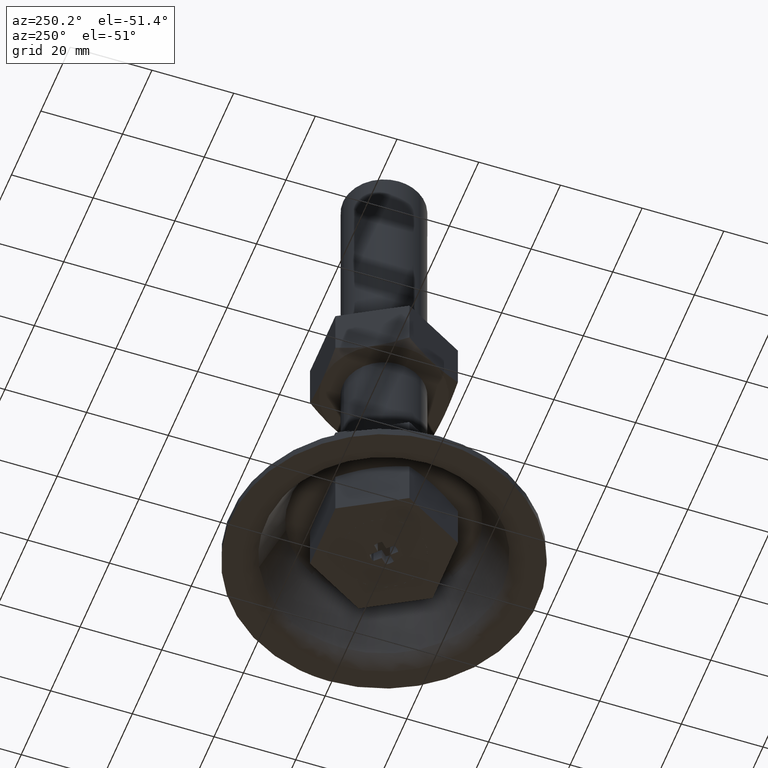
[diagram: clean part render]
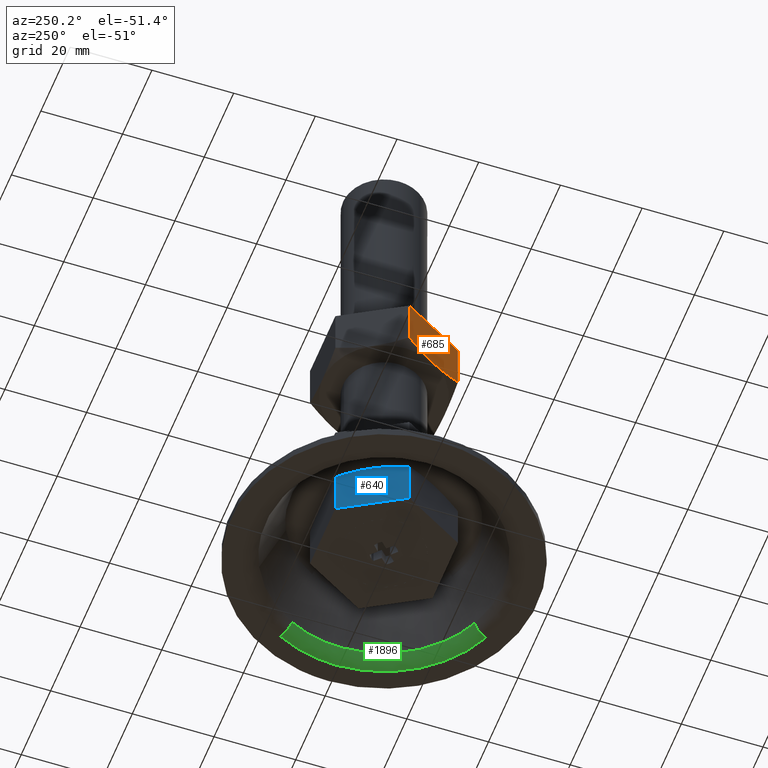
[diagram: same view with three faces highlighted in distinct colors, each labeled with its STEP entity id]
A machine part, auxiliary view with three faces highlighted in distinct colors.
Their STEP definitions:

[orange] entity #685 — the highlighted face is a freeform B-spline surface patch.
#243=CARTESIAN_POINT('',(-8.639746000000001,-15.0,62.345671394023498));
#244=VERTEX_POINT('',#243);
#267=CARTESIAN_POINT('',(-17.300000000000001,-3.847792E-016,62.339745951231102));
#268=VERTEX_POINT('',#267);
#269=CARTESIAN_POINT('',(-17.300000000000001,-3.847792E-016,62.339745951231102));
#270=CARTESIAN_POINT('',(-16.592941722767922,-1.224660865429836,61.931525664537929));
#271=CARTESIAN_POINT('',(-15.880722203566391,-2.458261264219856,61.595166574800167));
#272=CARTESIAN_POINT('',(-14.801235094892700,-4.327987790728781,61.245981053792342));
#273=CARTESIAN_POINT('',(-14.439541958482780,-4.954458682477314,61.155540189446192));
#274=CARTESIAN_POINT('',(-13.711936844397609,-6.214707713426930,61.033398389028733));
#275=CARTESIAN_POINT('',(-13.346021212827781,-6.848492181359093,61.001748326998843));
#276=CARTESIAN_POINT('',(-12.885799685170870,-7.645619253481179,61.001546577078052));
#277=CARTESIAN_POINT('',(-12.793614645803361,-7.805288426061178,61.003465697697358));
#278=CARTESIAN_POINT('',(-12.608961067811631,-8.125117806339848,61.011251166375267));
#279=CARTESIAN_POINT('',(-12.516661840701410,-8.284984757892698,61.017113104138417));
#280=CARTESIAN_POINT('',(-12.240427566274530,-8.763436558082766,61.040486526452412));
#281=CARTESIAN_POINT('',(-12.056912984918901,-9.081293138309434,61.063800979005457));
#282=CARTESIAN_POINT('',(-11.508210259183780,-10.031674141687260,61.155931109065449));
#283=CARTESIAN_POINT('',(-11.144867414517440,-10.661002411966070,61.246985155436597));
#284=CARTESIAN_POINT('',(-10.061320491401849,-12.537760743388411,61.598259512653499));
#285=CARTESIAN_POINT('',(-9.347572270797715,-13.774008930688909,61.936281682498588));
#286=CARTESIAN_POINT('',(-8.639746000000001,-15.0,62.345671394023498));
#287=B_SPLINE_CURVE_WITH_KNOTS('',3,(#269,#270,#271,#272,#273,#274,#275,#276,#277,#278,#279,#280,#281,#282,#283,#284,#285,#286),.UNSPECIFIED.,.F.,.U.,(4,2,2,2,2,2,2,2,4),(0.0,0.250000000000000,0.375000000000000,0.500000000000000,0.531250000000000,0.562500000000000,0.625000000000000,0.750000000000000,1.0),.UNSPECIFIED.);
#288=EDGE_CURVE('',#268,#244,#287,.T.);
#519=CARTESIAN_POINT('',(-8.639746000000001,-15.0,74.0));
#520=VERTEX_POINT('',#519);
#521=CARTESIAN_POINT('',(-17.300000000000001,0.0,74.0));
#522=VERTEX_POINT('',#521);
#523=CARTESIAN_POINT('',(-8.639746000000001,-15.0,74.0));
#524=CARTESIAN_POINT('',(-17.300000000000001,0.0,74.0));
#525=QUASI_UNIFORM_CURVE('',1,(#523,#524),.UNSPECIFIED.,.F.,.U.);
#526=EDGE_CURVE('',#520,#522,#525,.T.);
#593=CARTESIAN_POINT('',(-8.639746000000001,-15.0,74.0));
#594=CARTESIAN_POINT('',(-8.639746000000001,-15.0,62.345671394023498));
#595=QUASI_UNIFORM_CURVE('',1,(#593,#594),.UNSPECIFIED.,.F.,.U.);
#596=EDGE_CURVE('',#520,#244,#595,.T.);
#665=CARTESIAN_POINT('',(-17.300000000000001,0.0,74.0));
#666=CARTESIAN_POINT('',(-17.300000000000001,-3.847792E-016,62.339745951231102));
#667=QUASI_UNIFORM_CURVE('',1,(#665,#666),.UNSPECIFIED.,.F.,.U.);
#668=EDGE_CURVE('',#522,#268,#667,.T.);
#674=CARTESIAN_POINT('',(-17.732579507922260,0.749249689308524,60.352316161138162));
#675=CARTESIAN_POINT('',(-8.207166104934260,-15.749250359860810,60.352316161138162));
#676=CARTESIAN_POINT('',(-17.732579507922260,0.749249689308524,74.649271059209553));
#677=CARTESIAN_POINT('',(-8.207166104934260,-15.749250359860810,74.649271059209553));
#678=B_SPLINE_SURFACE_WITH_KNOTS('',1,1,((#674,#676),(#675,#677)),.UNSPECIFIED.,.F.,.F.,.U.,(2,2),(2,2),(0.0,19.050826868413449),(0.0,14.296954898071400),.UNSPECIFIED.);
#679=ORIENTED_EDGE('',*,*,#668,.T.);
#680=ORIENTED_EDGE('',*,*,#288,.T.);
#681=ORIENTED_EDGE('',*,*,#596,.F.);
#682=ORIENTED_EDGE('',*,*,#526,.T.);
#683=EDGE_LOOP('',(#679,#680,#681,#682));
#684=FACE_OUTER_BOUND('',#683,.T.);
#685=ADVANCED_FACE('',(#684),#678,.T.);

[blue] entity #640 — the highlighted face is a freeform B-spline surface patch.
#116=CARTESIAN_POINT('',(8.639746000000001,15.0,62.345671394023597));
#117=VERTEX_POINT('',#116);
#140=CARTESIAN_POINT('',(17.300000000000001,-5.809094E-016,62.339745951231102));
#141=VERTEX_POINT('',#140);
#142=CARTESIAN_POINT('',(17.300000000000001,-5.809094E-016,62.339745951231102));
#143=CARTESIAN_POINT('',(16.592941722767879,1.224660865429817,61.931525664537929));
#144=CARTESIAN_POINT('',(15.880722203566361,2.458261264219840,61.595166574800132));
#145=CARTESIAN_POINT('',(14.801235094892681,4.327987790728767,61.245981053792327));
#146=CARTESIAN_POINT('',(14.439541958482760,4.954458682477307,61.155540189446192));
#147=CARTESIAN_POINT('',(13.711936844397581,6.214707713426920,61.033398389028697));
#148=CARTESIAN_POINT('',(13.346021212827759,6.848492181359091,61.001748326998872));
#149=CARTESIAN_POINT('',(12.885799685170850,7.645619253481175,61.001546577078031));
#150=CARTESIAN_POINT('',(12.793614645803350,7.805288426061178,61.003465697697358));
#151=CARTESIAN_POINT('',(12.608961067811620,8.125117806339844,61.011251166375260));
#152=CARTESIAN_POINT('',(12.516661840701390,8.284984757892703,61.017113104138417));
#153=CARTESIAN_POINT('',(12.240427566274510,8.763436558082770,61.040486526452383));
#154=CARTESIAN_POINT('',(12.056912984918890,9.081293138309439,61.063800979005457));
#155=CARTESIAN_POINT('',(11.508210259183761,10.031674141687260,61.155931109065421));
#156=CARTESIAN_POINT('',(11.144867414517419,10.661002411966070,61.246985155436583));
#157=CARTESIAN_POINT('',(10.061320491401840,12.537760743388411,61.598259512653492));
#158=CARTESIAN_POINT('',(9.347572270797706,13.774008930688920,61.936281682498603));
#159=CARTESIAN_POINT('',(8.639746000000001,15.0,62.345671394023597));
#160=B_SPLINE_CURVE_WITH_KNOTS('',3,(#142,#143,#144,#145,#146,#147,#148,#149,#150,#151,#152,#153,#154,#155,#156,#157,#158,#159),.UNSPECIFIED.,.F.,.U.,(4,2,2,2,2,2,2,2,4),(0.0,0.249999999999999,0.374999999999999,0.499999999999998,0.531249999999998,0.562499999999998,0.624999999999998,0.749999999999999,1.0),.UNSPECIFIED.);
#161=EDGE_CURVE('',#141,#117,#160,.T.);
#535=CARTESIAN_POINT('',(17.300000000000001,0.0,74.0));
#536=VERTEX_POINT('',#535);
#542=CARTESIAN_POINT('',(8.639746000000001,15.0,74.0));
#543=VERTEX_POINT('',#542);
#544=CARTESIAN_POINT('',(8.639746000000001,15.0,74.0));
#545=CARTESIAN_POINT('',(17.300000000000001,0.0,74.0));
#546=QUASI_UNIFORM_CURVE('',1,(#544,#545),.UNSPECIFIED.,.F.,.U.);
#547=EDGE_CURVE('',#543,#536,#546,.T.);
#616=CARTESIAN_POINT('',(17.300000000000001,0.0,74.0));
#617=CARTESIAN_POINT('',(17.300000000000001,-5.809094E-016,62.339745951231102));
#618=QUASI_UNIFORM_CURVE('',1,(#616,#617),.UNSPECIFIED.,.F.,.U.);
#619=EDGE_CURVE('',#536,#141,#618,.T.);
#625=CARTESIAN_POINT('',(17.732579507922232,-0.749249689308545,60.352316161138141));
#626=CARTESIAN_POINT('',(8.207166104934263,15.749250359860810,60.352316161138148));
#627=CARTESIAN_POINT('',(17.732579507922232,-0.749249689308545,74.649271059209568));
#628=CARTESIAN_POINT('',(8.207166104934263,15.749250359860810,74.649271059209568));
#629=B_SPLINE_SURFACE_WITH_KNOTS('',1,1,((#625,#627),(#626,#628)),.UNSPECIFIED.,.F.,.F.,.U.,(2,2),(2,2),(0.0,19.050826868413449),(0.0,14.296954898071430),.UNSPECIFIED.);
#630=ORIENTED_EDGE('',*,*,#619,.T.);
#631=ORIENTED_EDGE('',*,*,#161,.T.);
#632=CARTESIAN_POINT('',(8.639746000000001,15.0,74.0));
#633=CARTESIAN_POINT('',(8.639746000000001,15.0,62.345671394023597));
#634=QUASI_UNIFORM_CURVE('',1,(#632,#633),.UNSPECIFIED.,.F.,.U.);
#635=EDGE_CURVE('',#543,#117,#634,.T.);
#636=ORIENTED_EDGE('',*,*,#635,.F.);
#637=ORIENTED_EDGE('',*,*,#547,.T.);
#638=EDGE_LOOP('',(#630,#631,#636,#637));
#639=FACE_OUTER_BOUND('',#638,.T.);
#640=ADVANCED_FACE('',(#639),#629,.T.);

[green] entity #1896 — the highlighted face is a freeform B-spline surface patch.
#963=CARTESIAN_POINT('',(25.704757550471040,13.301322007613750,2.237050468226475));
#964=VERTEX_POINT('',#963);
#978=CARTESIAN_POINT('',(28.942351802662198,0.0,2.237050468566510));
#979=VERTEX_POINT('',#978);
#980=CARTESIAN_POINT('',(25.704757550471044,13.301322007613750,2.237050468226474));
#981=CARTESIAN_POINT('',(28.942351802662202,7.044682610681849,2.237050468566510));
#982=CARTESIAN_POINT('',(28.942351802662198,0.0,2.237050468566510));
#990=(BOUNDED_CURVE()B_SPLINE_CURVE(2,(#980,#981,#982),.UNSPECIFIED.,.F.,.U.)B_SPLINE_CURVE_WITH_KNOTS((3,3),(0.421825371003049,0.500000000000000),.UNSPECIFIED.)CURVE()GEOMETRIC_REPRESENTATION_ITEM()RATIONAL_B_SPLINE_CURVE((0.874103860136126,0.908412725134143,1.0))REPRESENTATION_ITEM(''));
#991=EDGE_CURVE('',#964,#979,#990,.T.);
#993=CARTESIAN_POINT('',(11.809436057714841,-26.423416658250780,2.237050467591287));
#994=VERTEX_POINT('',#993);
#995=CARTESIAN_POINT('',(28.942351802662198,0.0,2.237050468566510));
#996=CARTESIAN_POINT('',(28.942351802662191,-18.766190660418051,2.237050468566510));
#997=CARTESIAN_POINT('',(11.809436057714844,-26.423416658250783,2.237050467591287));
#1005=(BOUNDED_CURVE()B_SPLINE_CURVE(2,(#995,#996,#997),.UNSPECIFIED.,.F.,.U.)B_SPLINE_CURVE_WITH_KNOTS((3,3),(0.500000000000000,0.680709483577362),.UNSPECIFIED.)CURVE()GEOMETRIC_REPRESENTATION_ITEM()RATIONAL_B_SPLINE_CURVE((1.0,0.788285670739640,0.882641638331817))REPRESENTATION_ITEM(''));
#1006=EDGE_CURVE('',#979,#994,#1005,.T.);
#1771=CARTESIAN_POINT('',(13.274496828831539,-29.701465753393460,6.272560E-016));
#1772=VERTEX_POINT('',#1771);
#1773=CARTESIAN_POINT('',(13.274496828831541,-29.701465753393460,6.272560E-016));
#1774=CARTESIAN_POINT('',(12.257614232263602,-27.426207865816647,2.246955E-009));
#1775=CARTESIAN_POINT('',(11.809436057714841,-26.423416658250787,2.237050467591287));
#1783=(BOUNDED_CURVE()B_SPLINE_CURVE(2,(#1773,#1774,#1775),.UNSPECIFIED.,.F.,.U.)B_SPLINE_CURVE_WITH_KNOTS((3,3),(-1.645059919364453,-0.344443061153596),.UNSPECIFIED.)CURVE()GEOMETRIC_REPRESENTATION_ITEM()RATIONAL_B_SPLINE_CURVE((0.884983933262238,0.752043508425035,0.887147264431271))REPRESENTATION_ITEM(''));
#1784=EDGE_CURVE('',#1772,#994,#1783,.T.);
#1803=CARTESIAN_POINT('',(28.893650885626290,14.951463893438650,6.131464E-016));
#1804=VERTEX_POINT('',#1803);
#1820=CARTESIAN_POINT('',(28.893650885626286,14.951463893438643,6.131464E-016));
#1821=CARTESIAN_POINT('',(26.680275031932048,13.806118527055904,3.588732E-010));
#1822=CARTESIAN_POINT('',(25.704757550471037,13.301322007613747,2.237050468226475));
#1830=(BOUNDED_CURVE()B_SPLINE_CURVE(2,(#1820,#1821,#1822),.UNSPECIFIED.,.F.,.U.)B_SPLINE_CURVE_WITH_KNOTS((3,3),(-1.645059920295007,-0.344443060717956),.UNSPECIFIED.)CURVE()GEOMETRIC_REPRESENTATION_ITEM()RATIONAL_B_SPLINE_CURVE((0.905349034995599,0.769349407105425,0.907562148275897))REPRESENTATION_ITEM(''));
#1831=EDGE_CURVE('',#1804,#964,#1830,.T.);
#1839=CARTESIAN_POINT('',(29.080025218520500,15.047906157494930,0.005508355514710));
#1840=CARTESIAN_POINT('',(44.127931376015439,-14.032119061025561,0.005508355514710));
#1841=CARTESIAN_POINT('',(15.047906157494939,-29.080025218520500,0.005508355514710));
#1842=CARTESIAN_POINT('',(14.215649132476672,-29.510689412147631,0.005508355514710));
#1843=CARTESIAN_POINT('',(13.360123708710887,-29.893050043822956,0.005508355514711));
#1844=CARTESIAN_POINT('',(26.602574505198223,13.765911194844442,-0.141036379579506));
#1845=CARTESIAN_POINT('',(40.368485700042669,-12.836663310353778,-0.141036379579506));
#1846=CARTESIAN_POINT('',(13.765911194844442,-26.602574505198223,-0.141036379579506));
#1847=CARTESIAN_POINT('',(13.004557676436129,-26.996548589181828,-0.141036379579506));
#1848=CARTESIAN_POINT('',(12.221918092880147,-27.346334296572476,-0.141036379579505));
#1849=CARTESIAN_POINT('',(25.627193417401880,13.261185254386630,2.427354544556523));
#1850=CARTESIAN_POINT('',(38.888378671788516,-12.366008163015247,2.427354544556525));
#1851=CARTESIAN_POINT('',(13.261185254386630,-25.627193417401880,2.427354544556523));
#1852=CARTESIAN_POINT('',(12.527746696721595,-26.006722475753687,2.427354544556523));
#1853=CARTESIAN_POINT('',(11.773802525642019,-26.343683320509175,2.427354544556525));
#1861=(BOUNDED_SURFACE()B_SPLINE_SURFACE(2,2,((#1839,#1844,#1849),(#1840,#1845,#1850),(#1841,#1846,#1851),(#1842,#1847,#1852),(#1843,#1848,#1853)),.UNSPECIFIED.,.F.,.F.,.U.)B_SPLINE_SURFACE_WITH_KNOTS((3,2,3),(3,3),(0.0,54.249956099669632,56.419952274184823),(0.0,5.033719472252819),.UNSPECIFIED.)GEOMETRIC_REPRESENTATION_ITEM()RATIONAL_B_SPLINE_SURFACE(((0.919619680268002,0.754968262264206,0.922053791315759),(0.650269312030109,0.533843177827644,0.651990488458139),(0.919619680268002,0.754968262264206,0.922053791315759),(0.908845675813387,0.746123267321996,0.911251269503552),(0.898933590893150,0.737985871300343,0.901312948612154)))REPRESENTATION_ITEM('')SURFACE());
#1862=ORIENTED_EDGE('',*,*,#1006,.F.);
#1863=ORIENTED_EDGE('',*,*,#991,.F.);
#1864=ORIENTED_EDGE('',*,*,#1831,.F.);
#1865=CARTESIAN_POINT('',(32.532896183340213,0.0,0.0));
#1866=VERTEX_POINT('',#1865);
#1867=CARTESIAN_POINT('',(28.893650885626290,14.951463893438653,6.131464E-016));
#1868=CARTESIAN_POINT('',(32.532896183340206,7.918635278180695,0.0));
#1869=CARTESIAN_POINT('',(32.532896183340213,0.0,0.0));
#1877=(BOUNDED_CURVE()B_SPLINE_CURVE(2,(#1867,#1868,#1869),.UNSPECIFIED.,.F.,.U.)B_SPLINE_CURVE_WITH_KNOTS((3,3),(0.421825371002993,0.500000000000000),.UNSPECIFIED.)CURVE()GEOMETRIC_REPRESENTATION_ITEM()RATIONAL_B_SPLINE_CURVE((0.874103860136077,0.908412725134076,1.0))REPRESENTATION_ITEM(''));
#1878=EDGE_CURVE('',#1804,#1866,#1877,.T.);
#1879=ORIENTED_EDGE('',*,*,#1878,.T.);
#1880=CARTESIAN_POINT('',(32.532896183340213,0.0,0.0));
#1881=CARTESIAN_POINT('',(32.532896183340206,-21.094295884190277,0.0));
#1882=CARTESIAN_POINT('',(13.274496828831538,-29.701465753393457,6.272560E-016));
#1890=(BOUNDED_CURVE()B_SPLINE_CURVE(2,(#1880,#1881,#1882),.UNSPECIFIED.,.F.,.U.)B_SPLINE_CURVE_WITH_KNOTS((3,3),(0.500000000000000,0.680709483576786),.UNSPECIFIED.)CURVE()GEOMETRIC_REPRESENTATION_ITEM()RATIONAL_B_SPLINE_CURVE((1.0,0.788285670740313,0.882641638331216))REPRESENTATION_ITEM(''));
#1891=EDGE_CURVE('',#1866,#1772,#1890,.T.);
#1892=ORIENTED_EDGE('',*,*,#1891,.T.);
#1893=ORIENTED_EDGE('',*,*,#1784,.T.);
#1894=EDGE_LOOP('',(#1862,#1863,#1864,#1879,#1892,#1893));
#1895=FACE_OUTER_BOUND('',#1894,.T.);
#1896=ADVANCED_FACE('',(#1895),#1861,.T.);